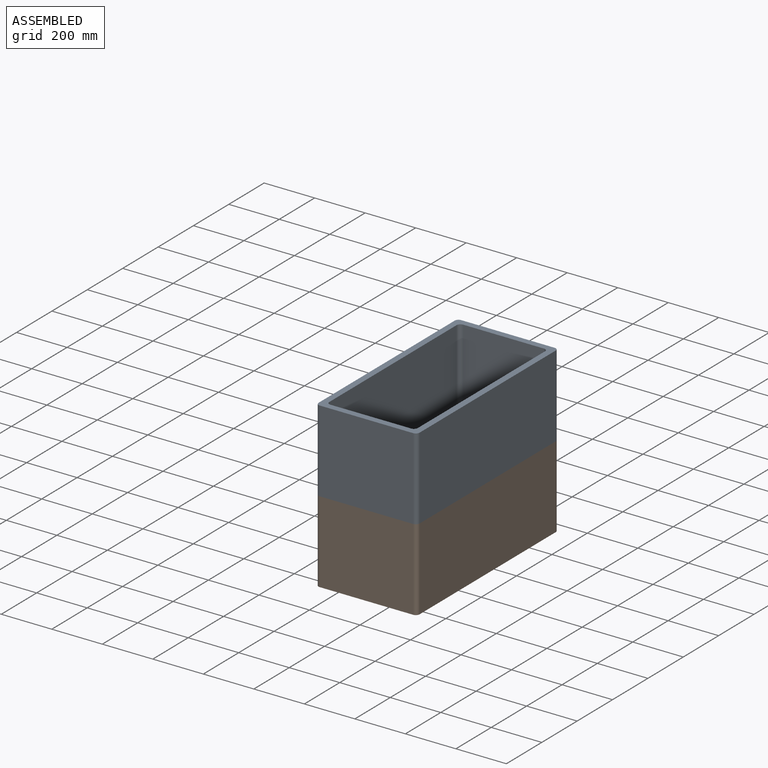
[diagram: assembled view]
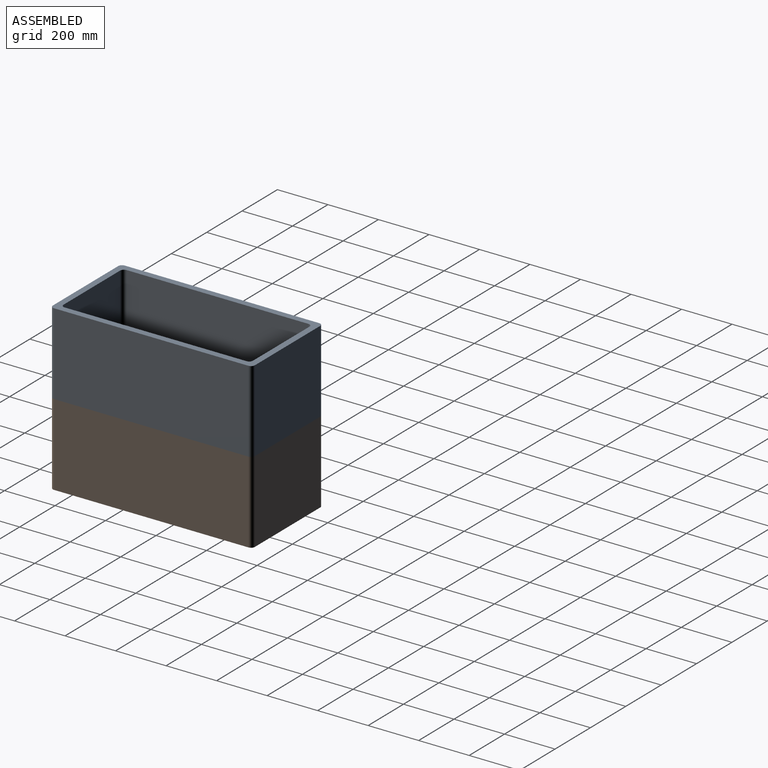
[diagram: assembled view, second angle]
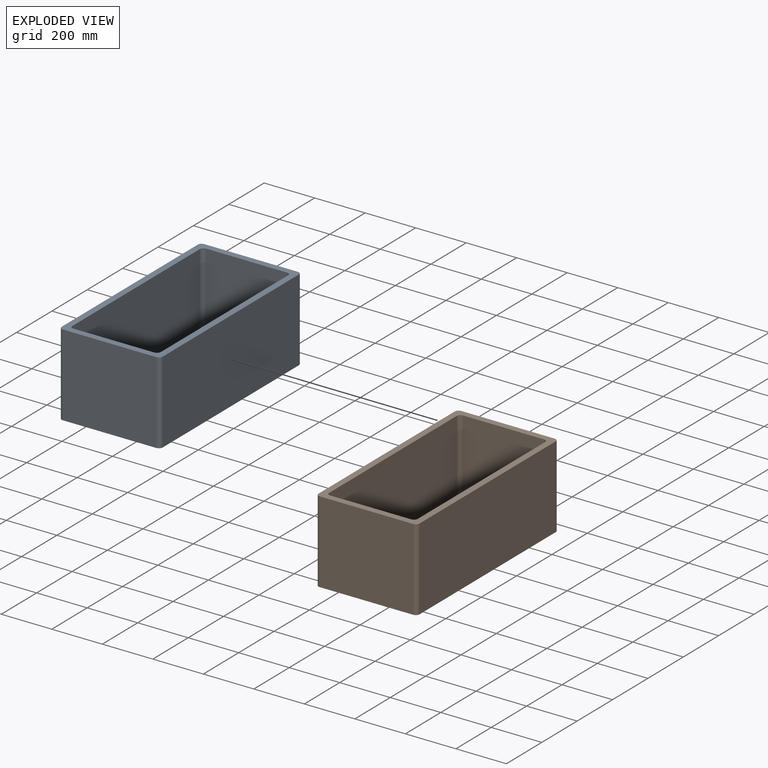
[diagram: exploded view]
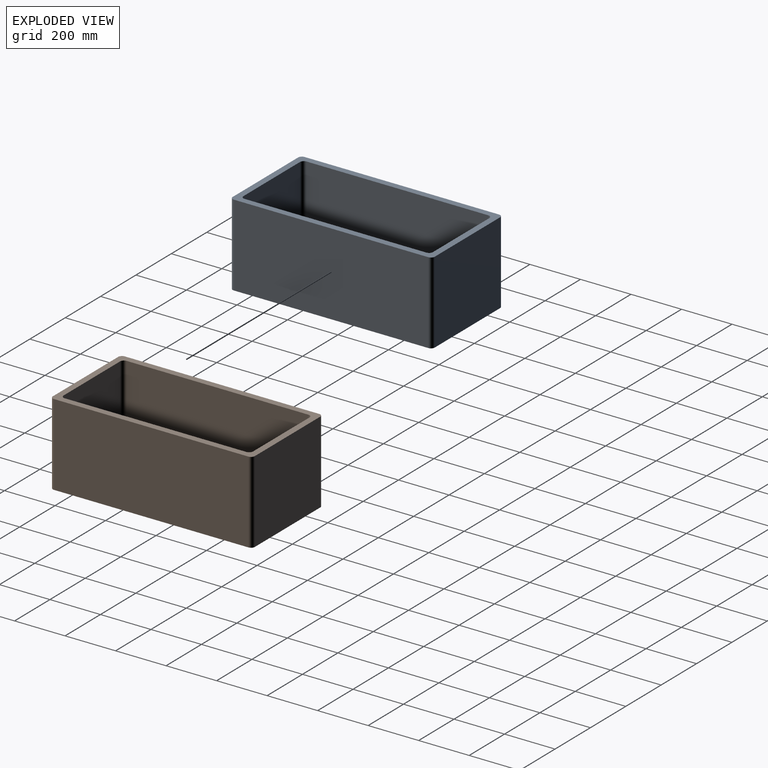
[diagram: exploded view, second angle]
ASSEMBLY  parts=2 mates=3
PART A: 19 faces, bbox 800x400x325 mm
  f0: plane 770x325mm, normal (0,1,0), area 250250mm2, adj f8,f13,f16,f18
  f1: plane 370x325mm, normal (-1,0,0), area 120250mm2, adj f8,f13,f14,f18
  f2: plane 770x325mm, normal (0,-1,0), area 250250mm2, adj f8,f14,f15,f18
  f3: plane 720x300mm, normal (0,1,0), area 216000mm2, adj f8,f9,f12,f17
  f4: plane 320x300mm, normal (1,0,0), area 96000mm2, adj f8,f9,f10,f17
  f5: plane 720x300mm, normal (0,-1,0), area 216000mm2, adj f8,f10,f11,f17
  f6: plane 320x300mm, normal (-1,0,0), area 96000mm2, adj f8,f11,f12,f17
  f7: plane 370x325mm, normal (1,0,0), area 120250mm2, adj f8,f15,f16,f18
  f8: plane 800x400mm, normal (0,0,1), area 57500mm2, adj f0,f1,f2,f3,f4,f5,f6,f7
  f9: cylinder r=15mm len=300mm, axis (0,0,1), area 7068.6mm2, adj f3,f4,f8,f17
  f10: cylinder r=15mm len=300mm, axis (0,0,-1), area 7068.6mm2, adj f4,f5,f8,f17
  f11: cylinder r=15mm len=300mm, axis (0,0,1), area 7068.6mm2, adj f5,f6,f8,f17
  f12: cylinder r=15mm len=300mm, axis (0,0,-1), area 7068.6mm2, adj f3,f6,f8,f17
  f13: cylinder r=15mm len=325mm, axis (0,0,-1), area 7657.6mm2, adj f0,f1,f8,f18
  f14: cylinder r=15mm len=325mm, axis (0,0,1), area 7657.6mm2, adj f1,f2,f8,f18
  f15: cylinder r=15mm len=325mm, axis (0,0,-1), area 7657.6mm2, adj f2,f7,f8,f18
  f16: cylinder r=15mm len=325mm, axis (0,0,1), area 7657.6mm2, adj f0,f7,f8,f18
  f17: plane 750x350mm, normal (0,0,1), area 262306.9mm2, adj f3,f4,f5,f6,f9,f10,f11,f12
  f18: plane 800x400mm, normal (0,0,-1), area 319806.9mm2, adj f0,f1,f2,f7,f13,f14,f15,f16
PART B: same geometry as A
PLACE A rot(axis=(0,0,-1),90deg) t=(-267.74,-66.51,293.78)mm
PLACE B rot(axis=(0,0,-1),90deg) t=(-267.74,-66.51,-31.22)mm
MATE planar A.f1 <-> B.f1  axis (0,1,0) through (-67.74,-66.51,431.28)mm
MATE planar A.f2 <-> B.f2  axis (-1,0,0) through (-267.74,-466.51,431.28)mm
MATE planar A.f18 <-> B.f8  axis (0,0,-1) through (-67.74,-466.51,268.78)mm
